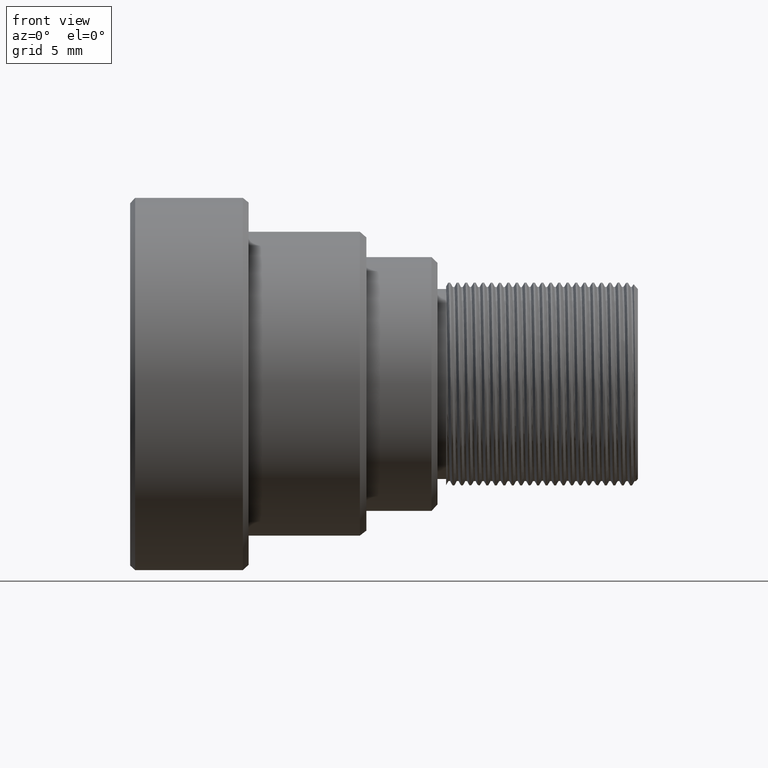
[diagram: clean part render]
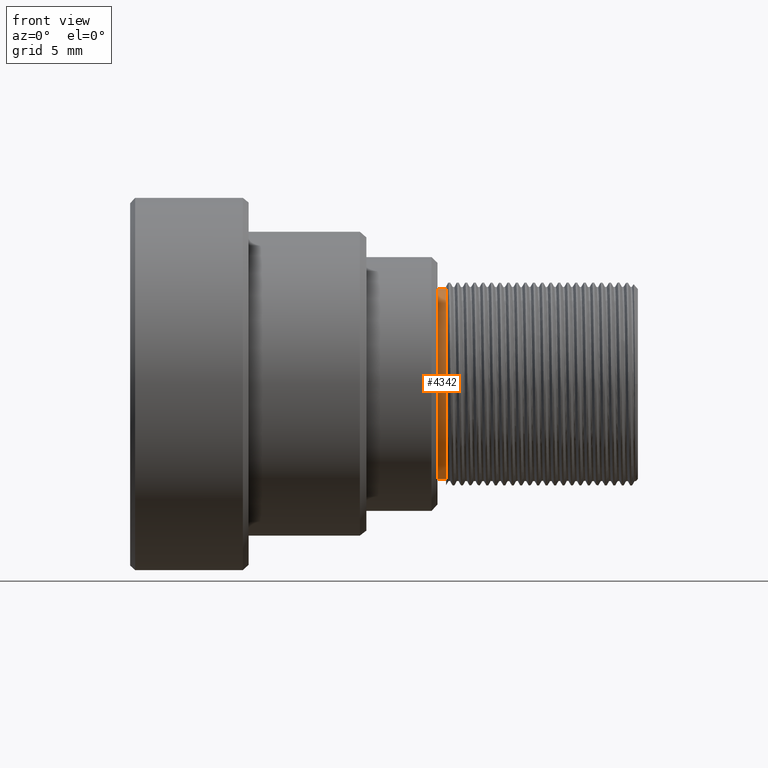
[diagram: same view with one face highlighted and labeled with its STEP entity id]
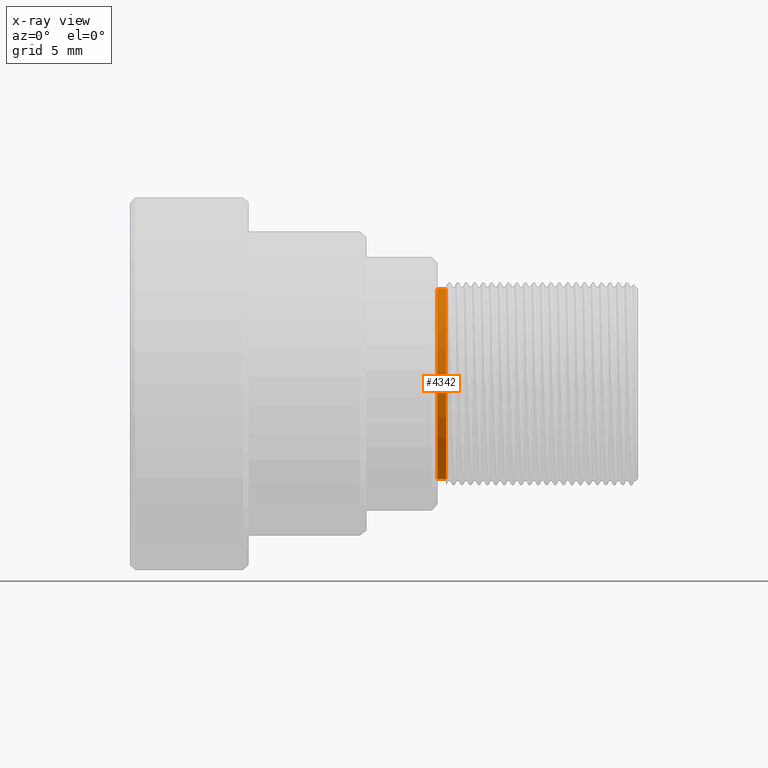
[diagram: x-ray of the same camera — body ghosted, the highlighted face saturated]
A machine part, front view. The second image highlights one B-rep face of the part: STEP entity #4342.
The next image is the same camera in x-ray: the body ghosted, the highlighted face saturated — about 0% of this face is hidden behind the body in this view.
In plain terms, the highlighted cylindrical surface (bore or boss wall) has radius 5.6145 mm, axis along (-1, 0, 0).
Its self-contained STEP definition (entity closure, byte-faithful):
#35 = AXIS2_PLACEMENT_3D ( 'NONE', #9343, #2680, #7792 ) ;
#1733 = CIRCLE ( 'NONE', #2663, 5.614487553974999656 ) ;
#1911 = EDGE_LOOP ( 'NONE', ( #2393 ) ) ;
#2064 = CARTESIAN_POINT ( 'NONE',  ( -11.83933062470999964, 0.000000000000000000, 5.614487553974999656 ) ) ;
#2115 = VERTEX_POINT ( 'NONE', #2064 ) ;
#2368 = DIRECTION ( 'NONE',  ( 0.000000000000000000, 0.000000000000000000, 1.000000000000000000 ) ) ;
#2393 = ORIENTED_EDGE ( 'NONE', *, *, #8810, .T. ) ;
#2511 = CARTESIAN_POINT ( 'NONE',  ( -11.83933062470999964, 0.000000000000000000, 0.000000000000000000 ) ) ;
#2663 = AXIS2_PLACEMENT_3D ( 'NONE', #3095, #8359, #4549 ) ;
#2680 = DIRECTION ( 'NONE',  ( -1.000000000000000000, 0.000000000000000000, 0.000000000000000000 ) ) ;
#3095 = CARTESIAN_POINT ( 'NONE',  ( -11.32583298363999980, 0.000000000000000000, 0.000000000000000000 ) ) ;
#3444 = CYLINDRICAL_SURFACE ( 'NONE', #35, 5.614487553974999656 ) ;
#3655 = VERTEX_POINT ( 'NONE', #5901 ) ;
#3956 = DIRECTION ( 'NONE',  ( 1.000000000000000000, -0.000000000000000000, -0.000000000000000000 ) ) ;
#4342 = ADVANCED_FACE ( 'NONE', ( #8657, #6378 ), #3444, .T. ) ;
#4549 = DIRECTION ( 'NONE',  ( 0.000000000000000000, 0.000000000000000000, 1.000000000000000000 ) ) ;
#4584 = EDGE_CURVE ( 'NONE', #3655, #3655, #1733, .T. ) ;
#5631 = ORIENTED_EDGE ( 'NONE', *, *, #4584, .T. ) ;
#5901 = CARTESIAN_POINT ( 'NONE',  ( -11.32583298363999980, 0.000000000000000000, 5.614487553974999656 ) ) ;
#6378 = FACE_OUTER_BOUND ( 'NONE', #8386, .T. ) ;
#7792 = DIRECTION ( 'NONE',  ( 0.000000000000000000, 0.000000000000000000, 1.000000000000000000 ) ) ;
#7947 = AXIS2_PLACEMENT_3D ( 'NONE', #2511, #3956, #2368 ) ;
#8109 = CIRCLE ( 'NONE', #7947, 5.614487553974999656 ) ;
#8359 = DIRECTION ( 'NONE',  ( -1.000000000000000000, 0.000000000000000000, 0.000000000000000000 ) ) ;
#8386 = EDGE_LOOP ( 'NONE', ( #5631 ) ) ;
#8657 = FACE_OUTER_BOUND ( 'NONE', #1911, .T. ) ;
#8810 = EDGE_CURVE ( 'NONE', #2115, #2115, #8109, .T. ) ;
#9343 = CARTESIAN_POINT ( 'NONE',  ( 1.500000000000000000, 0.000000000000000000, 0.000000000000000000 ) ) ;